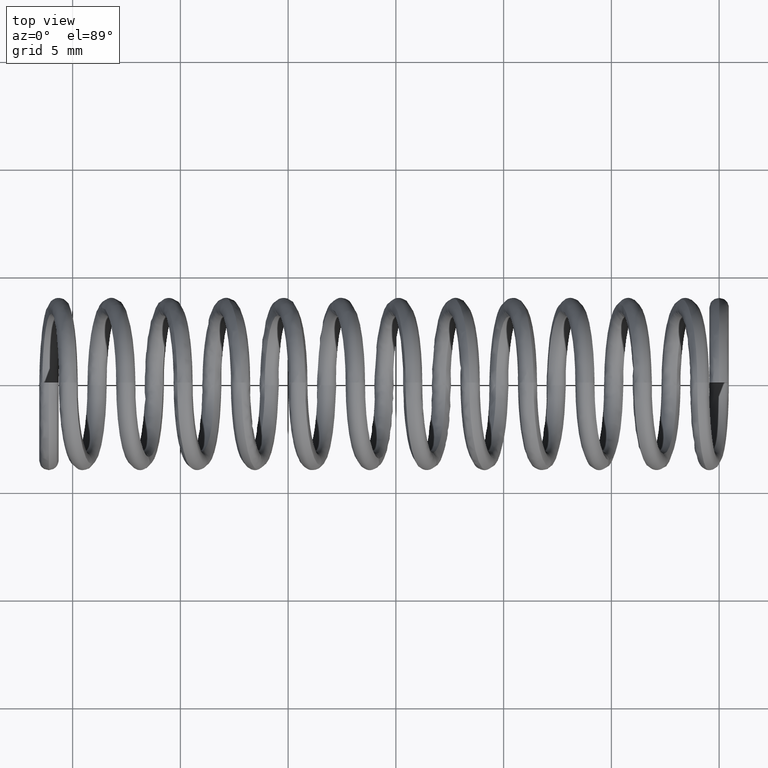
[diagram: clean part render]
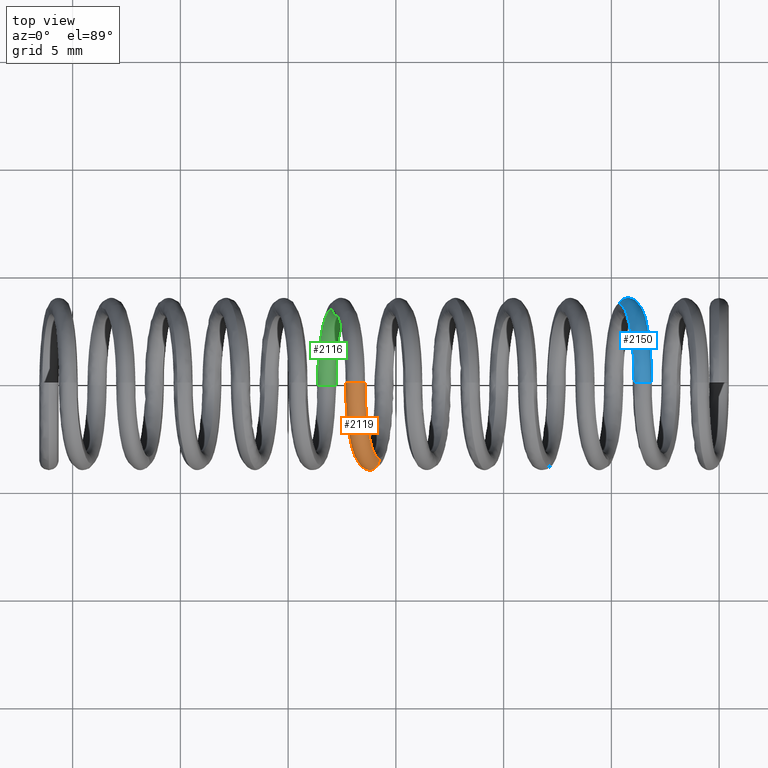
[diagram: same view with three faces highlighted in distinct colors, each labeled with its STEP entity id]
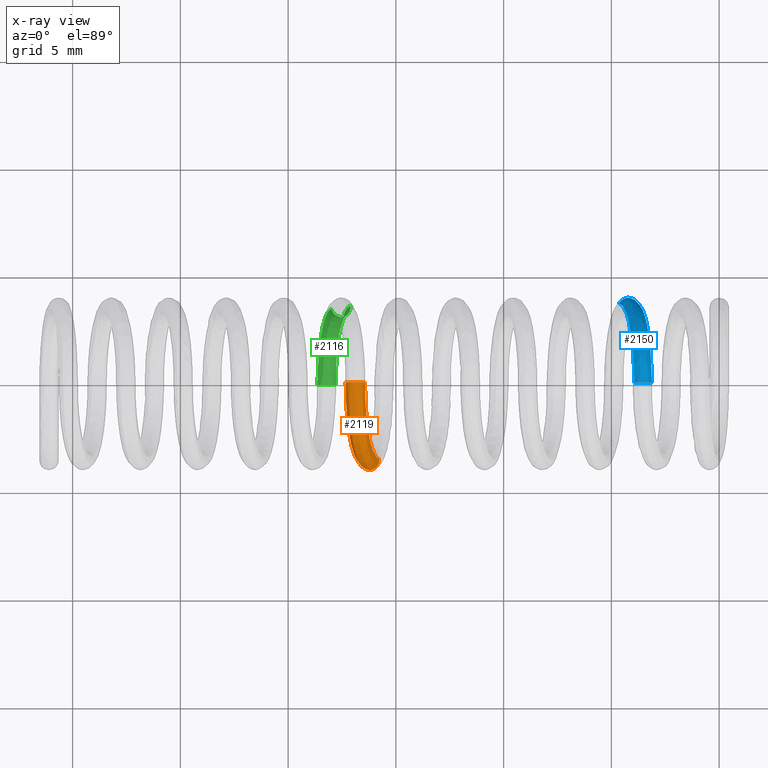
[diagram: x-ray of the same camera — body ghosted, the three highlighted faces saturated]
A machine part, top view with three faces highlighted in distinct colors.
The next image is the same camera in x-ray (body ghosted, the three faces saturated) — at least one of them is partly hidden behind the body in this view.
Their STEP definitions:

[orange] entity #2119 — the highlighted face is a freeform B-spline surface patch.
#2119=ADVANCED_FACE('',(#2447),#2446,.T.);
#2446=( BOUNDED_SURFACE() B_SPLINE_SURFACE( 3,3,((#4077,#4078,#4079,#4080,#4081,#4082),(#4083,#4084,#4085,#4086,#4087,#4088),(#4089,#4090,#4091,#4092,#4093,#4094),(#4095,#4096,#4097,#4098,#4099,#4100),(#4101,#4102,#4103,#4104,#4105,#4106),(#4107,#4108,#4109,#4110,#4111,#4112)), .UNSPECIFIED.,.F.,.F.,.F.) B_SPLINE_SURFACE_WITH_KNOTS((4,2,4),(4,2,4),(5.00000000000E-01,7.50000000000E-01,1.00000000000E+00),(4.61498912377E-01,4.71124184203E-01,4.80749456030E-01), .UNSPECIFIED. ) GEOMETRIC_REPRESENTATION_ITEM() RATIONAL_B_SPLINE_SURFACE(((1.00000000000E+00,1.00000000000E+00,1.00000000000E+00,1.00000000000E+00,1.00000000000E+00,1.00000000000E+00),(1.00000000000E+00,1.00000000000E+00,1.00000000000E+00,1.00000000000E+00,1.00000000000E+00,1.00000000000E+00),(1.00000000000E+00,1.00000000000E+00,1.00000000000E+00,1.00000000000E+00,1.00000000000E+00,1.00000000000E+00),(1.00000000000E+00,1.00000000000E+00,1.00000000000E+00,1.00000000000E+00,1.00000000000E+00,1.00000000000E+00),(1.00000000000E+00,1.00000000000E+00,1.00000000000E+00,1.00000000000E+00,1.00000000000E+00,1.00000000000E+00),(1.00000000000E+00,1.00000000000E+00,1.00000000000E+00,1.00000000000E+00,1.00000000000E+00,1.00000000000E+00))) REPRESENTATION_ITEM('') SURFACE() );
#2447=FACE_OUTER_BOUND('',#4113,.T.);
#4077=CARTESIAN_POINT('',(-1.64318407115E+01,4.89858719659E-16,3.54549709116E+00));
#4078=CARTESIAN_POINT('',(-1.64318407115E+01,-9.08421872900E-01,3.54549709116E+00));
#4079=CARTESIAN_POINT('',(-1.63618833604E+01,-1.80676522065E+00,3.17255039333E+00));
#4080=CARTESIAN_POINT('',(-1.61213528544E+01,-3.08904730330E+00,1.89026831051E+00));
#4081=CARTESIAN_POINT('',(-1.59526586782E+01,-3.46261440131E+00,9.90949868998E-01));
#4082=CARTESIAN_POINT('',(-1.57820424243E+01,-3.46261440131E+00,8.13847204387E-02));
#4083=CARTESIAN_POINT('',(-1.64294829939E+01,4.89858719659E-16,3.78110474368E+00));
#4084=CARTESIAN_POINT('',(-1.64294829939E+01,-9.70285202473E-01,3.78110474368E+00));
#4085=CARTESIAN_POINT('',(-1.63547381972E+01,-1.92919886681E+00,3.38263589538E+00));
#4086=CARTESIAN_POINT('',(-1.60982972795E+01,-3.29630027785E+00,2.01553448440E+00));
#4087=CARTESIAN_POINT('',(-1.59186567788E+01,-3.69374857321E+00,1.05786055213E+00));
#4088=CARTESIAN_POINT('',(-1.57370717668E+01,-3.69374857321E+00,8.98203175294E-02));
#4089=CARTESIAN_POINT('',(-1.66417076205E+01,4.63604674103E-16,3.99761975278E+00));
#4090=CARTESIAN_POINT('',(-1.66417076205E+01,-1.03771460938E+00,3.99761975278E+00));
#4091=CARTESIAN_POINT('',(-1.65617446335E+01,-2.06264833038E+00,3.57133242979E+00));
#4092=CARTESIAN_POINT('',(-1.62879617843E+01,-3.52220058503E+00,2.11178017544E+00));
#4093=CARTESIAN_POINT('',(-1.60963900769E+01,-3.94567875922E+00,1.09050028859E+00));
#4094=CARTESIAN_POINT('',(-1.59028494062E+01,-3.94567875922E+00,5.87237436731E-02));
#4095=CARTESIAN_POINT('',(-1.71129229255E+01,4.05894553291E-16,4.00233518789E+00));
#4096=CARTESIAN_POINT('',(-1.71129229255E+01,-1.06220736314E+00,4.00233518789E+00));
#4097=CARTESIAN_POINT('',(-1.70310645067E+01,-2.11112191188E+00,3.56594320757E+00));
#4098=CARTESIAN_POINT('',(-1.67509824524E+01,-3.60425559415E+00,2.07280952568E+00));
#4099=CARTESIAN_POINT('',(-1.65550769074E+01,-4.03718874418E+00,1.02842569864E+00));
#4100=CARTESIAN_POINT('',(-1.63571935171E+01,-4.03718874418E+00,-2.65021362752E-02));
#4101=CARTESIAN_POINT('',(-1.73294379346E+01,3.79640507736E-16,3.79011056135E+00));
#4102=CARTESIAN_POINT('',(-1.73294379346E+01,-1.01706291645E+00,3.79011056135E+00));
#4103=CARTESIAN_POINT('',(-1.72510731296E+01,-2.02177658807E+00,3.37234323911E+00));
#4104=CARTESIAN_POINT('',(-1.69826016165E+01,-3.45301380154E+00,1.94110602586E+00));
#4105=CARTESIAN_POINT('',(-1.67946840955E+01,-3.86851977059E+00,9.39306818175E-01));
#4106=CARTESIAN_POINT('',(-1.66048051000E+01,-3.86851977059E+00,-7.29491233480E-02));
#4107=CARTESIAN_POINT('',(-1.73317956522E+01,3.79640507736E-16,3.55450290884E+00));
#4108=CARTESIAN_POINT('',(-1.73317956522E+01,-9.55199586877E-01,3.55450290884E+00));
#4109=CARTESIAN_POINT('',(-1.72582182928E+01,-1.89934294191E+00,3.16225773705E+00));
#4110=CARTESIAN_POINT('',(-1.70056571914E+01,-3.24576082699E+00,1.81583985197E+00));
#4111=CARTESIAN_POINT('',(-1.68286859949E+01,-3.63738559869E+00,8.72396135043E-01));
#4112=CARTESIAN_POINT('',(-1.66497757576E+01,-3.63738559869E+00,-8.13847204387E-02));
#4113=EDGE_LOOP('',(#7000,#7001,#7002,#7003));
#7000=ORIENTED_EDGE('',*,*,#7386,.T.);
#7001=ORIENTED_EDGE('',*,*,#7383,.T.);
#7002=ORIENTED_EDGE('',*,*,#7387,.F.);
#7003=ORIENTED_EDGE('',*,*,#7385,.F.);
#7383=EDGE_CURVE('',#8004,#7996,#8005,.T.);
#7385=EDGE_CURVE('',#8011,#7997,#8018,.T.);
#7386=EDGE_CURVE('',#8011,#8004,#8024,.T.);
#7387=EDGE_CURVE('',#7997,#7996,#8030,.T.);
#7996=VERTEX_POINT('',#9312);
#7997=VERTEX_POINT('',#9313);
#8004=VERTEX_POINT('',#9320);
#8005=(BOUNDED_CURVE() B_SPLINE_CURVE(3,(#9321,#9322,#9323,#9324,#9325,#9326),.UNSPECIFIED.,.F.,.F.) B_SPLINE_CURVE_WITH_KNOTS((4,2,4),(4.61498912377E-01,4.71124184203E-01,4.80749456030E-01),.UNSPECIFIED.) CURVE() GEOMETRIC_REPRESENTATION_ITEM() RATIONAL_B_SPLINE_CURVE((1.00000000000E+00,1.00000000000E+00,1.00000000000E+00,1.00000000000E+00,1.00000000000E+00,1.00000000000E+00)) REPRESENTATION_ITEM('') );
#8011=VERTEX_POINT('',#9327);
#8018=(BOUNDED_CURVE() B_SPLINE_CURVE(3,(#9334,#9335,#9336,#9337,#9338,#9339),.UNSPECIFIED.,.F.,.F.) B_SPLINE_CURVE_WITH_KNOTS((4,2,4),(4.61498912377E-01,4.71124184203E-01,4.80749456030E-01),.UNSPECIFIED.) CURVE() GEOMETRIC_REPRESENTATION_ITEM() RATIONAL_B_SPLINE_CURVE((1.00000000000E+00,1.00000000000E+00,1.00000000000E+00,1.00000000000E+00,1.00000000000E+00,1.00000000000E+00)) REPRESENTATION_ITEM('') );
#8024=(BOUNDED_CURVE() B_SPLINE_CURVE(3,(#9340,#9341,#9342,#9343,#9344,#9345),.UNSPECIFIED.,.F.,.F.) B_SPLINE_CURVE_WITH_KNOTS((4,2,4),(5.00000000000E-01,7.50000000000E-01,1.00000000000E+00),.UNSPECIFIED.) CURVE() GEOMETRIC_REPRESENTATION_ITEM() RATIONAL_B_SPLINE_CURVE((1.00000000000E+00,1.00000000000E+00,1.00000000000E+00,1.00000000000E+00,1.00000000000E+00,1.00000000000E+00)) REPRESENTATION_ITEM('') );
#8030=(BOUNDED_CURVE() B_SPLINE_CURVE(3,(#9346,#9347,#9348,#9349,#9350,#9351),.UNSPECIFIED.,.F.,.F.) B_SPLINE_CURVE_WITH_KNOTS((4,2,4),(5.00000000000E-01,7.50000000000E-01,1.00000000000E+00),.UNSPECIFIED.) CURVE() GEOMETRIC_REPRESENTATION_ITEM() RATIONAL_B_SPLINE_CURVE((1.00000000000E+00,1.00000000000E+00,1.00000000000E+00,1.00000000000E+00,1.00000000000E+00,1.00000000000E+00)) REPRESENTATION_ITEM('') );
#9312=CARTESIAN_POINT('',(-1.66497757576E+01,-3.63738559869E+00,-8.13847204387E-02));
#9313=CARTESIAN_POINT('',(-1.57820424243E+01,-3.46261440131E+00,8.13847204387E-02));
#9320=CARTESIAN_POINT('',(-1.73317956522E+01,1.56821552263E-16,3.55450290884E+00));
#9321=CARTESIAN_POINT('',(-1.73317956522E+01,3.79640507736E-16,3.55450290884E+00));
#9322=CARTESIAN_POINT('',(-1.73317956522E+01,-9.55199586877E-01,3.55450290884E+00));
#9323=CARTESIAN_POINT('',(-1.72582182928E+01,-1.89934294191E+00,3.16225773705E+00));
#9324=CARTESIAN_POINT('',(-1.70056571914E+01,-3.24576082699E+00,1.81583985197E+00));
#9325=CARTESIAN_POINT('',(-1.68286859949E+01,-3.63738559869E+00,8.72396135043E-01));
#9326=CARTESIAN_POINT('',(-1.66497757576E+01,-3.63738559869E+00,-8.13847204387E-02));
#9327=CARTESIAN_POINT('',(-1.64318407115E+01,4.89858719659E-16,3.54549709116E+00));
#9334=CARTESIAN_POINT('',(-1.64318407115E+01,4.89858719659E-16,3.54549709116E+00));
#9335=CARTESIAN_POINT('',(-1.64318407115E+01,-9.08421872900E-01,3.54549709116E+00));
#9336=CARTESIAN_POINT('',(-1.63618833604E+01,-1.80676522065E+00,3.17255039333E+00));
#9337=CARTESIAN_POINT('',(-1.61213528544E+01,-3.08904730330E+00,1.89026831051E+00));
#9338=CARTESIAN_POINT('',(-1.59526586782E+01,-3.46261440131E+00,9.90949868998E-01));
#9339=CARTESIAN_POINT('',(-1.57820424243E+01,-3.46261440131E+00,8.13847204387E-02));
#9340=CARTESIAN_POINT('',(-1.64318407115E+01,4.89858719659E-16,3.54549709116E+00));
#9341=CARTESIAN_POINT('',(-1.64294829939E+01,4.89858719659E-16,3.78110474368E+00));
#9342=CARTESIAN_POINT('',(-1.66417076205E+01,4.63604674103E-16,3.99761975278E+00));
#9343=CARTESIAN_POINT('',(-1.71129229255E+01,4.05894553291E-16,4.00233518789E+00));
#9344=CARTESIAN_POINT('',(-1.73294379346E+01,3.79640507736E-16,3.79011056135E+00));
#9345=CARTESIAN_POINT('',(-1.73317956522E+01,3.79640507736E-16,3.55450290884E+00));
#9346=CARTESIAN_POINT('',(-1.57820424243E+01,-3.46261440131E+00,8.13847204387E-02));
#9347=CARTESIAN_POINT('',(-1.57370717668E+01,-3.69374857321E+00,8.98203175294E-02));
#9348=CARTESIAN_POINT('',(-1.59028494062E+01,-3.94567875922E+00,5.87237436731E-02));
#9349=CARTESIAN_POINT('',(-1.63571935171E+01,-4.03718874418E+00,-2.65021362752E-02));
#9350=CARTESIAN_POINT('',(-1.66048051000E+01,-3.86851977059E+00,-7.29491233480E-02));
#9351=CARTESIAN_POINT('',(-1.66497757576E+01,-3.63738559869E+00,-8.13847204387E-02));

[blue] entity #2150 — the highlighted face is a freeform B-spline surface patch.
#2150=ADVANCED_FACE('',(#2757),#2756,.T.);
#2756=( BOUNDED_SURFACE() B_SPLINE_SURFACE( 3,3,((#5224,#5225,#5226,#5227,#5228,#5229),(#5230,#5231,#5232,#5233,#5234,#5235),(#5236,#5237,#5238,#5239,#5240,#5241),(#5242,#5243,#5244,#5245,#5246,#5247),(#5248,#5249,#5250,#5251,#5252,#5253),(#5254,#5255,#5256,#5257,#5258,#5259)), .UNSPECIFIED.,.F.,.F.,.F.) B_SPLINE_SURFACE_WITH_KNOTS((4,2,4),(4,2,4),(0.00000000000E+00,2.50000000000E-01,5.00000000000E-01),(8.27259244640E-01,8.36884516625E-01,8.46509788610E-01), .UNSPECIFIED. ) GEOMETRIC_REPRESENTATION_ITEM() RATIONAL_B_SPLINE_SURFACE(((1.00000000000E+00,1.00000000000E+00,1.00000000000E+00,1.00000000000E+00,1.00000000000E+00,1.00000000000E+00),(1.00000000000E+00,1.00000000000E+00,1.00000000000E+00,1.00000000000E+00,1.00000000000E+00,1.00000000000E+00),(1.00000000000E+00,1.00000000000E+00,1.00000000000E+00,1.00000000000E+00,1.00000000000E+00,1.00000000000E+00),(1.00000000000E+00,1.00000000000E+00,1.00000000000E+00,1.00000000000E+00,1.00000000000E+00,1.00000000000E+00),(1.00000000000E+00,1.00000000000E+00,1.00000000000E+00,1.00000000000E+00,1.00000000000E+00,1.00000000000E+00),(1.00000000000E+00,1.00000000000E+00,1.00000000000E+00,1.00000000000E+00,1.00000000000E+00,1.00000000000E+00))) REPRESENTATION_ITEM('') SURFACE() );
#2757=FACE_OUTER_BOUND('',#5260,.T.);
#5224=CARTESIAN_POINT('',(-3.82072271057E+00,3.37829364893E+00,-7.66869807820E-02));
#5225=CARTESIAN_POINT('',(-3.65410799975E+00,3.37829364893E+00,8.11545709658E-01));
#5226=CARTESIAN_POINT('',(-3.48940718665E+00,3.01343871721E+00,1.68957530034E+00));
#5227=CARTESIAN_POINT('',(-3.25468100780E+00,1.76209983912E+00,2.94091417868E+00));
#5228=CARTESIAN_POINT('',(-3.18647017814E+00,8.85853339389E-01,3.30455006919E+00));
#5229=CARTESIAN_POINT('',(-3.18647017814E+00,-1.63859243710E-17,3.30455006919E+00));
#5230=CARTESIAN_POINT('',(-3.73235863657E+00,3.59608614982E+00,-9.32623160456E-02));
#5231=CARTESIAN_POINT('',(-3.55540831296E+00,3.59608614982E+00,8.50070125865E-01));
#5232=CARTESIAN_POINT('',(-3.38039302608E+00,3.20872850581E+00,1.78308677469E+00));
#5233=CARTESIAN_POINT('',(-3.13067482633E+00,1.87746629423E+00,3.11434898632E+00));
#5234=CARTESIAN_POINT('',(-3.05795289490E+00,9.44145756126E-01,3.50203382211E+00));
#5235=CARTESIAN_POINT('',(-3.05795289490E+00,-3.76184192088E-17,3.50203382211E+00));
#5236=CARTESIAN_POINT('',(-3.84672341633E+00,3.87604780184E+00,-7.18097677292E-02));
#5237=CARTESIAN_POINT('',(-3.65648716589E+00,3.87604780184E+00,9.42350720990E-01));
#5238=CARTESIAN_POINT('',(-3.46821312535E+00,3.45976401721E+00,1.94605055484E+00));
#5239=CARTESIAN_POINT('',(-3.19922341294E+00,2.02576425319E+00,3.38005031862E+00));
#5240=CARTESIAN_POINT('',(-3.12070267990E+00,1.01907781863E+00,3.79864890224E+00));
#5241=CARTESIAN_POINT('',(-3.12070267990E+00,-4.91307280291E-17,3.79864890224E+00));
#5242=CARTESIAN_POINT('',(-4.27484159269E+00,4.05585827220E+00,8.49665075436E-03));
#5243=CARTESIAN_POINT('',(-4.07607221374E+00,4.05585827220E+00,1.06814774263E+00));
#5244=CARTESIAN_POINT('',(-3.87928249716E+00,3.62099614688E+00,2.11724513952E+00));
#5245=CARTESIAN_POINT('',(-3.59791530472E+00,2.12101131851E+00,3.61722996749E+00));
#5246=CARTESIAN_POINT('',(-3.51567018573E+00,1.06720430062E+00,4.05568346872E+00));
#5247=CARTESIAN_POINT('',(-3.51567018573E+00,-3.19714281537E-17,4.05568346872E+00));
#5248=CARTESIAN_POINT('',(-4.55000412450E+00,3.93949885195E+00,6.01116455183E-02));
#5249=CARTESIAN_POINT('',(-4.35675672591E+00,3.93949885195E+00,1.09032473971E+00));
#5250=CARTESIAN_POINT('',(-4.16547769581E+00,3.51665919088E+00,2.11004434728E+00));
#5251=CARTESIAN_POINT('',(-3.89212025050E+00,2.05937478935E+00,3.56732874853E+00));
#5252=CARTESIAN_POINT('',(-3.81228526585E+00,1.03606056616E+00,3.99293368372E+00));
#5253=CARTESIAN_POINT('',(-3.81228526585E+00,-4.84657046686E-18,3.99293368372E+00));
#5254=CARTESIAN_POINT('',(-4.63836819850E+00,3.72170635107E+00,7.66869807819E-02));
#5255=CARTESIAN_POINT('',(-4.45545641270E+00,3.72170635107E+00,1.05180032350E+00));
#5256=CARTESIAN_POINT('',(-4.27449185637E+00,3.32136940228E+00,2.01653287293E+00));
#5257=CARTESIAN_POINT('',(-4.01612643197E+00,1.94400833424E+00,3.39389394090E+00));
#5258=CARTESIAN_POINT('',(-3.94080254910E+00,9.77768149421E-01,3.79544993081E+00));
#5259=CARTESIAN_POINT('',(-3.94080254910E+00,1.63859243710E-17,3.79544993081E+00));
#5260=EDGE_LOOP('',(#7124,#7125,#7126,#7127));
#7124=ORIENTED_EDGE('',*,*,#7444,.F.);
#7125=ORIENTED_EDGE('',*,*,#7468,.F.);
#7126=ORIENTED_EDGE('',*,*,#7436,.T.);
#7127=ORIENTED_EDGE('',*,*,#7469,.T.);
#7436=EDGE_CURVE('',#8356,#8357,#8358,.T.);
#7444=EDGE_CURVE('',#8404,#8411,#8412,.T.);
#7468=EDGE_CURVE('',#8356,#8404,#8566,.T.);
#7469=EDGE_CURVE('',#8357,#8411,#8572,.T.);
#8356=VERTEX_POINT('',#9672);
#8357=VERTEX_POINT('',#9673);
#8358=(BOUNDED_CURVE() B_SPLINE_CURVE(3,(#9674,#9675,#9676,#9677,#9678,#9679),.UNSPECIFIED.,.F.,.F.) B_SPLINE_CURVE_WITH_KNOTS((4,2,4),(0.00000000000E+00,2.50000000000E-01,5.00000000000E-01),.UNSPECIFIED.) CURVE() GEOMETRIC_REPRESENTATION_ITEM() RATIONAL_B_SPLINE_CURVE((1.00000000000E+00,1.00000000000E+00,1.00000000000E+00,1.00000000000E+00,1.00000000000E+00,1.00000000000E+00)) REPRESENTATION_ITEM('') );
#8404=VERTEX_POINT('',#9720);
#8411=VERTEX_POINT('',#9727);
#8412=(BOUNDED_CURVE() B_SPLINE_CURVE(3,(#9728,#9729,#9730,#9731,#9732,#9733),.UNSPECIFIED.,.F.,.F.) B_SPLINE_CURVE_WITH_KNOTS((4,2,4),(0.00000000000E+00,2.50000000000E-01,5.00000000000E-01),.UNSPECIFIED.) CURVE() GEOMETRIC_REPRESENTATION_ITEM() RATIONAL_B_SPLINE_CURVE((1.00000000000E+00,1.00000000000E+00,1.00000000000E+00,1.00000000000E+00,1.00000000000E+00,1.00000000000E+00)) REPRESENTATION_ITEM('') );
#8566=(BOUNDED_CURVE() B_SPLINE_CURVE(3,(#9890,#9891,#9892,#9893,#9894,#9895),.UNSPECIFIED.,.F.,.F.) B_SPLINE_CURVE_WITH_KNOTS((4,2,4),(8.27259244640E-01,8.36884516625E-01,8.46509788610E-01),.UNSPECIFIED.) CURVE() GEOMETRIC_REPRESENTATION_ITEM() RATIONAL_B_SPLINE_CURVE((1.00000000000E+00,1.00000000000E+00,1.00000000000E+00,1.00000000000E+00,1.00000000000E+00,1.00000000000E+00)) REPRESENTATION_ITEM('') );
#8572=(BOUNDED_CURVE() B_SPLINE_CURVE(3,(#9896,#9897,#9898,#9899,#9900,#9901),.UNSPECIFIED.,.F.,.F.) B_SPLINE_CURVE_WITH_KNOTS((4,2,4),(8.27259244640E-01,8.36884516625E-01,8.46509788610E-01),.UNSPECIFIED.) CURVE() GEOMETRIC_REPRESENTATION_ITEM() RATIONAL_B_SPLINE_CURVE((1.00000000000E+00,1.00000000000E+00,1.00000000000E+00,1.00000000000E+00,1.00000000000E+00,1.00000000000E+00)) REPRESENTATION_ITEM('') );
#9672=CARTESIAN_POINT('',(-3.82072271057E+00,3.37829364893E+00,-7.66869807820E-02));
#9673=CARTESIAN_POINT('',(-4.63836819850E+00,3.72170635107E+00,7.66869807819E-02));
#9674=CARTESIAN_POINT('',(-3.82072271057E+00,3.37829364893E+00,-7.66869807820E-02));
#9675=CARTESIAN_POINT('',(-3.73235863657E+00,3.59608614982E+00,-9.32623160456E-02));
#9676=CARTESIAN_POINT('',(-3.84672341633E+00,3.87604780184E+00,-7.18097677292E-02));
#9677=CARTESIAN_POINT('',(-4.27484159269E+00,4.05585827220E+00,8.49665075436E-03));
#9678=CARTESIAN_POINT('',(-4.55000412450E+00,3.93949885195E+00,6.01116455183E-02));
#9679=CARTESIAN_POINT('',(-4.63836819850E+00,3.72170635107E+00,7.66869807819E-02));
#9720=CARTESIAN_POINT('',(-3.18647017815E+00,1.81627291682E-16,3.30455006919E+00));
#9727=CARTESIAN_POINT('',(-3.94080254910E+00,4.89858719659E-16,3.79544993081E+00));
#9728=CARTESIAN_POINT('',(-3.18647017815E+00,3.79640507736E-16,3.30455006919E+00));
#9729=CARTESIAN_POINT('',(-3.05795289491E+00,3.79640507736E-16,3.50203382211E+00));
#9730=CARTESIAN_POINT('',(-3.12070267991E+00,4.05894553291E-16,3.79864890224E+00));
#9731=CARTESIAN_POINT('',(-3.51567018573E+00,4.63604674103E-16,4.05568346872E+00));
#9732=CARTESIAN_POINT('',(-3.81228526586E+00,4.89858719659E-16,3.99293368372E+00));
#9733=CARTESIAN_POINT('',(-3.94080254910E+00,4.89858719659E-16,3.79544993081E+00));
#9890=CARTESIAN_POINT('',(-3.82072271057E+00,3.37829364893E+00,-7.66869807820E-02));
#9891=CARTESIAN_POINT('',(-3.65410799975E+00,3.37829364893E+00,8.11545709658E-01));
#9892=CARTESIAN_POINT('',(-3.48940718665E+00,3.01343871721E+00,1.68957530034E+00));
#9893=CARTESIAN_POINT('',(-3.25468100780E+00,1.76209983912E+00,2.94091417868E+00));
#9894=CARTESIAN_POINT('',(-3.18647017814E+00,8.85853339389E-01,3.30455006919E+00));
#9895=CARTESIAN_POINT('',(-3.18647017814E+00,-1.63859243710E-17,3.30455006919E+00));
#9896=CARTESIAN_POINT('',(-4.63836819850E+00,3.72170635107E+00,7.66869807819E-02));
#9897=CARTESIAN_POINT('',(-4.45545641270E+00,3.72170635107E+00,1.05180032350E+00));
#9898=CARTESIAN_POINT('',(-4.27449185637E+00,3.32136940228E+00,2.01653287293E+00));
#9899=CARTESIAN_POINT('',(-4.01612643197E+00,1.94400833424E+00,3.39389394090E+00));
#9900=CARTESIAN_POINT('',(-3.94080254910E+00,9.77768149421E-01,3.79544993081E+00));
#9901=CARTESIAN_POINT('',(-3.94080254910E+00,1.63859243710E-17,3.79544993081E+00));

[green] entity #2116 — the highlighted face is a freeform B-spline surface patch.
#2116=ADVANCED_FACE('',(#2417),#2416,.T.);
#2416=( BOUNDED_SURFACE() B_SPLINE_SURFACE( 3,3,((#3966,#3967,#3968,#3969,#3970,#3971),(#3972,#3973,#3974,#3975,#3976,#3977),(#3978,#3979,#3980,#3981,#3982,#3983),(#3984,#3985,#3986,#3987,#3988,#3989),(#3990,#3991,#3992,#3993,#3994,#3995),(#3996,#3997,#3998,#3999,#4000,#4001)), .UNSPECIFIED.,.F.,.F.,.F.) B_SPLINE_SURFACE_WITH_KNOTS((4,2,4),(4,2,4),(0.00000000000E+00,2.50000000000E-01,5.00000000000E-01),(4.22997824753E-01,4.32623096580E-01,4.42248368407E-01), .UNSPECIFIED. ) GEOMETRIC_REPRESENTATION_ITEM() RATIONAL_B_SPLINE_SURFACE(((1.00000000000E+00,1.00000000000E+00,1.00000000000E+00,1.00000000000E+00,1.00000000000E+00,1.00000000000E+00),(1.00000000000E+00,1.00000000000E+00,1.00000000000E+00,1.00000000000E+00,1.00000000000E+00,1.00000000000E+00),(1.00000000000E+00,1.00000000000E+00,1.00000000000E+00,1.00000000000E+00,1.00000000000E+00,1.00000000000E+00),(1.00000000000E+00,1.00000000000E+00,1.00000000000E+00,1.00000000000E+00,1.00000000000E+00,1.00000000000E+00),(1.00000000000E+00,1.00000000000E+00,1.00000000000E+00,1.00000000000E+00,1.00000000000E+00,1.00000000000E+00),(1.00000000000E+00,1.00000000000E+00,1.00000000000E+00,1.00000000000E+00,1.00000000000E+00,1.00000000000E+00))) REPRESENTATION_ITEM('') SURFACE() );
#2417=FACE_OUTER_BOUND('',#4002,.T.);
#3966=CARTESIAN_POINT('',(-1.86346560093E+01,-3.79640507736E-16,-3.39112124752E+00));
#3967=CARTESIAN_POINT('',(-1.86346560093E+01,9.10790970930E-01,-3.39112124752E+00));
#3968=CARTESIAN_POINT('',(-1.85645153197E+01,1.81145389991E+00,-3.01719716167E+00));
#3969=CARTESIAN_POINT('',(-1.83233755138E+01,3.09698419608E+00,-1.73166686534E+00));
#3970=CARTESIAN_POINT('',(-1.81542621406E+01,3.47146584069E+00,-8.30113660855E-01));
#3971=CARTESIAN_POINT('',(-1.79832258307E+01,3.47146584069E+00,8.16908306594E-02));
#3972=CARTESIAN_POINT('',(-1.85514672890E+01,-3.79640507736E-16,-3.17067587656E+00));
#3973=CARTESIAN_POINT('',(-1.85514672890E+01,8.48694956433E-01,-3.17067587656E+00));
#3974=CARTESIAN_POINT('',(-1.84861320519E+01,1.68855974727E+00,-2.82236993697E+00));
#3975=CARTESIAN_POINT('',(-1.82609625012E+01,2.88895168634E+00,-1.62197799752E+00));
#3976=CARTESIAN_POINT('',(-1.81028366246E+01,3.23946230988E+00,-7.78999774781E-01));
#3977=CARTESIAN_POINT('',(-1.79428103294E+01,3.23946230988E+00,7.41096898798E-02));
#3978=CARTESIAN_POINT('',(-1.82752029821E+01,-4.05894553291E-16,-3.04579163410E+00));
#3979=CARTESIAN_POINT('',(-1.82752029821E+01,8.02210157992E-01,-3.04579163410E+00));
#3980=CARTESIAN_POINT('',(-1.82134650853E+01,1.59656173482E+00,-2.71666332410E+00));
#3981=CARTESIAN_POINT('',(-1.80002507961E+01,2.73321948093E+00,-1.58000557744E+00));
#3982=CARTESIAN_POINT('',(-1.78503501102E+01,3.06578550542E+00,-7.80876323784E-01));
#3983=CARTESIAN_POINT('',(-1.76985658626E+01,3.06578550542E+00,2.82943065588E-02));
#3984=CARTESIAN_POINT('',(-1.78343122402E+01,-4.63604674103E-16,-3.21216907463E+00));
#3985=CARTESIAN_POINT('',(-1.78343122402E+01,8.24221998098E-01,-3.21216907463E+00));
#3986=CARTESIAN_POINT('',(-1.77708709031E+01,1.64012534288E+00,-2.87395962563E+00));
#3987=CARTESIAN_POINT('',(-1.75519954663E+01,2.80696299536E+00,-1.70712197268E+00));
#3988=CARTESIAN_POINT('',(-1.73981999247E+01,3.14802628473E+00,-8.87229017153E-01));
#3989=CARTESIAN_POINT('',(-1.72425128392E+01,3.14802628473E+00,-5.72521312629E-02));
#3990=CARTESIAN_POINT('',(-1.77094279977E+01,-4.89858719659E-16,-3.48843338152E+00));
#3991=CARTESIAN_POINT('',(-1.77094279977E+01,8.90734474347E-01,-3.48843338152E+00));
#3992=CARTESIAN_POINT('',(-1.76408394294E+01,1.77176011002E+00,-3.12278374400E+00));
#3993=CARTESIAN_POINT('',(-1.74048578831E+01,3.02979142446E+00,-1.86475242933E+00));
#3994=CARTESIAN_POINT('',(-1.72392933800E+01,3.39653062849E+00,-9.82118457112E-01));
#3995=CARTESIAN_POINT('',(-1.70718132134E+01,3.39653062849E+00,-8.92719714389E-02));
#3996=CARTESIAN_POINT('',(-1.77926167180E+01,-4.89858719659E-16,-3.70887875248E+00));
#3997=CARTESIAN_POINT('',(-1.77926167180E+01,9.52830488844E-01,-3.70887875248E+00));
#3998=CARTESIAN_POINT('',(-1.77192226971E+01,1.89465426265E+00,-3.31761096870E+00));
#3999=CARTESIAN_POINT('',(-1.74672708957E+01,3.23782393420E+00,-1.97444129714E+00));
#4000=CARTESIAN_POINT('',(-1.72907188960E+01,3.62853415931E+00,-1.03323234319E+00));
#4001=CARTESIAN_POINT('',(-1.71122287147E+01,3.62853415931E+00,-8.16908306594E-02));
#4002=EDGE_LOOP('',(#6988,#6989,#6990,#6991));
#6988=ORIENTED_EDGE('',*,*,#7376,.F.);
#6989=ORIENTED_EDGE('',*,*,#7377,.F.);
#6990=ORIENTED_EDGE('',*,*,#7378,.T.);
#6991=ORIENTED_EDGE('',*,*,#7379,.T.);
#7376=EDGE_CURVE('',#7956,#7957,#7958,.T.);
#7377=EDGE_CURVE('',#7964,#7956,#7965,.T.);
#7378=EDGE_CURVE('',#7964,#7971,#7972,.T.);
#7379=EDGE_CURVE('',#7971,#7957,#7978,.T.);
#7956=VERTEX_POINT('',#9272);
#7957=VERTEX_POINT('',#9273);
#7958=(BOUNDED_CURVE() B_SPLINE_CURVE(3,(#9274,#9275,#9276,#9277,#9278,#9279),.UNSPECIFIED.,.F.,.F.) B_SPLINE_CURVE_WITH_KNOTS((4,2,4),(0.00000000000E+00,2.50000000000E-01,5.00000000000E-01),.UNSPECIFIED.) CURVE() GEOMETRIC_REPRESENTATION_ITEM() RATIONAL_B_SPLINE_CURVE((1.00000000000E+00,1.00000000000E+00,1.00000000000E+00,1.00000000000E+00,1.00000000000E+00,1.00000000000E+00)) REPRESENTATION_ITEM('') );
#7964=VERTEX_POINT('',#9280);
#7965=(BOUNDED_CURVE() B_SPLINE_CURVE(3,(#9281,#9282,#9283,#9284,#9285,#9286),.UNSPECIFIED.,.F.,.F.) B_SPLINE_CURVE_WITH_KNOTS((4,2,4),(4.22997824753E-01,4.32623096580E-01,4.42248368407E-01),.UNSPECIFIED.) CURVE() GEOMETRIC_REPRESENTATION_ITEM() RATIONAL_B_SPLINE_CURVE((1.00000000000E+00,1.00000000000E+00,1.00000000000E+00,1.00000000000E+00,1.00000000000E+00,1.00000000000E+00)) REPRESENTATION_ITEM('') );
#7971=VERTEX_POINT('',#9287);
#7972=(BOUNDED_CURVE() B_SPLINE_CURVE(3,(#9288,#9289,#9290,#9291,#9292,#9293),.UNSPECIFIED.,.F.,.F.) B_SPLINE_CURVE_WITH_KNOTS((4,2,4),(0.00000000000E+00,2.50000000000E-01,5.00000000000E-01),.UNSPECIFIED.) CURVE() GEOMETRIC_REPRESENTATION_ITEM() RATIONAL_B_SPLINE_CURVE((1.00000000000E+00,1.00000000000E+00,1.00000000000E+00,1.00000000000E+00,1.00000000000E+00,1.00000000000E+00)) REPRESENTATION_ITEM('') );
#7978=(BOUNDED_CURVE() B_SPLINE_CURVE(3,(#9294,#9295,#9296,#9297,#9298,#9299),.UNSPECIFIED.,.F.,.F.) B_SPLINE_CURVE_WITH_KNOTS((4,2,4),(4.22997824753E-01,4.32623096580E-01,4.42248368407E-01),.UNSPECIFIED.) CURVE() GEOMETRIC_REPRESENTATION_ITEM() RATIONAL_B_SPLINE_CURVE((1.00000000000E+00,1.00000000000E+00,1.00000000000E+00,1.00000000000E+00,1.00000000000E+00,1.00000000000E+00)) REPRESENTATION_ITEM('') );
#9272=CARTESIAN_POINT('',(-1.79832258307E+01,3.47146584069E+00,8.16908306594E-02));
#9273=CARTESIAN_POINT('',(-1.71122287147E+01,3.62853415931E+00,-8.16908306594E-02));
#9274=CARTESIAN_POINT('',(-1.79832258307E+01,3.47146584069E+00,8.16908306594E-02));
#9275=CARTESIAN_POINT('',(-1.79428103294E+01,3.23946230988E+00,7.41096898798E-02));
#9276=CARTESIAN_POINT('',(-1.76985658626E+01,3.06578550542E+00,2.82943065588E-02));
#9277=CARTESIAN_POINT('',(-1.72425128392E+01,3.14802628473E+00,-5.72521312629E-02));
#9278=CARTESIAN_POINT('',(-1.70718132134E+01,3.39653062849E+00,-8.92719714389E-02));
#9279=CARTESIAN_POINT('',(-1.71122287147E+01,3.62853415931E+00,-8.16908306594E-02));
#9280=CARTESIAN_POINT('',(-1.86346560093E+01,-1.67158402221E-16,-3.39112124752E+00));
#9281=CARTESIAN_POINT('',(-1.86346560093E+01,-3.79640507736E-16,-3.39112124752E+00));
#9282=CARTESIAN_POINT('',(-1.86346560093E+01,9.10790970930E-01,-3.39112124752E+00));
#9283=CARTESIAN_POINT('',(-1.85645153197E+01,1.81145389991E+00,-3.01719716167E+00));
#9284=CARTESIAN_POINT('',(-1.83233755138E+01,3.09698419608E+00,-1.73166686534E+00));
#9285=CARTESIAN_POINT('',(-1.81542621406E+01,3.47146584069E+00,-8.30113660855E-01));
#9286=CARTESIAN_POINT('',(-1.79832258307E+01,3.47146584069E+00,8.16908306594E-02));
#9287=CARTESIAN_POINT('',(-1.77926167180E+01,-4.89858719659E-16,-3.70887875248E+00));
#9288=CARTESIAN_POINT('',(-1.86346560093E+01,-3.79640507736E-16,-3.39112124752E+00));
#9289=CARTESIAN_POINT('',(-1.85514672890E+01,-3.79640507736E-16,-3.17067587656E+00));
#9290=CARTESIAN_POINT('',(-1.82752029821E+01,-4.05894553291E-16,-3.04579163410E+00));
#9291=CARTESIAN_POINT('',(-1.78343122402E+01,-4.63604674103E-16,-3.21216907463E+00));
#9292=CARTESIAN_POINT('',(-1.77094279977E+01,-4.89858719659E-16,-3.48843338152E+00));
#9293=CARTESIAN_POINT('',(-1.77926167180E+01,-4.89858719659E-16,-3.70887875248E+00));
#9294=CARTESIAN_POINT('',(-1.77926167180E+01,-4.89858719659E-16,-3.70887875248E+00));
#9295=CARTESIAN_POINT('',(-1.77926167180E+01,9.52830488844E-01,-3.70887875248E+00));
#9296=CARTESIAN_POINT('',(-1.77192226971E+01,1.89465426265E+00,-3.31761096870E+00));
#9297=CARTESIAN_POINT('',(-1.74672708957E+01,3.23782393420E+00,-1.97444129714E+00));
#9298=CARTESIAN_POINT('',(-1.72907188960E+01,3.62853415931E+00,-1.03323234319E+00));
#9299=CARTESIAN_POINT('',(-1.71122287147E+01,3.62853415931E+00,-8.16908306594E-02));